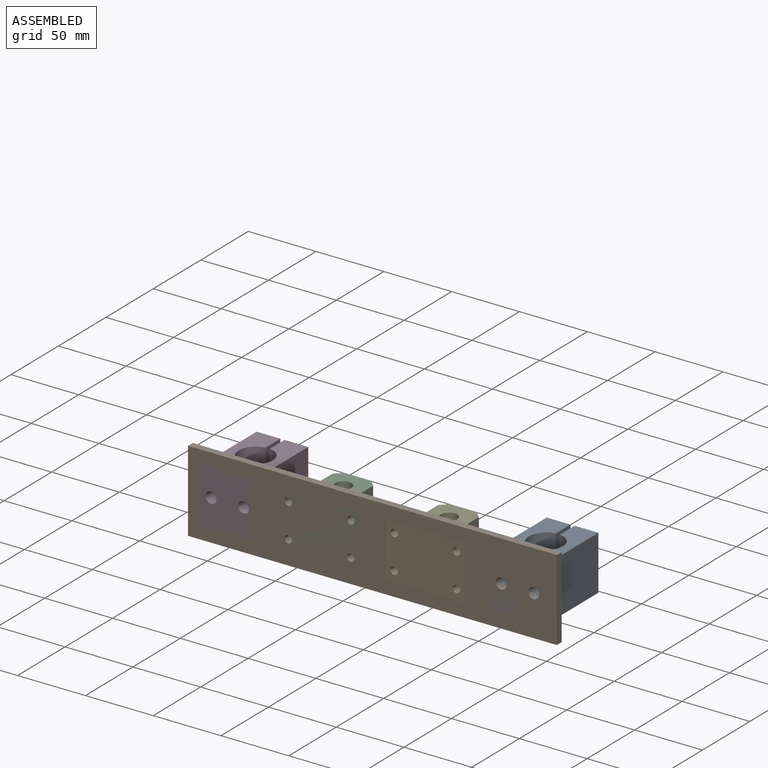
[diagram: assembled view]
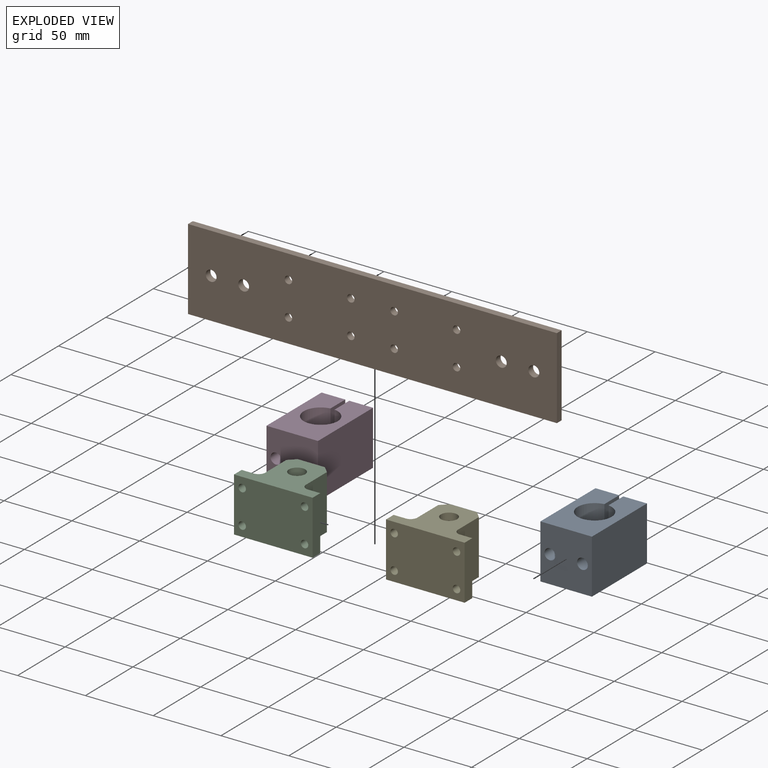
[diagram: exploded view]
GUIDED TOUR — MATED ASSEMBLY (Onshape document 39f4f6e592cfe54fdb34791c, AutoMate assembly 39f4f6e592cfe54fdb34791c_dfca0fee2ea0741d9b24875f_88b0c6e9309286d7284665ed_default)

This assembly has 5 components, labeled P0..P4 below (a component is one placed occurrence of a part; the same part can appear more than once), held together by 3 mates. A mate is a constraint between two components; its type names the relative motion it leaves free:
  CYLINDRICAL — leaves both rotation about and translation along the listed axis free.
Axis/direction vectors are unit vectors and 'through' points are millimeter coordinates, both in the assembly's world frame.

MATES
  1. CYLINDRICAL "Cylindrical 1": P4 <-> P1, axis (0.000, -1.000, 0.000) through (-22.84, -34.95, 57.49) mm
  2. CYLINDRICAL "Cylindrical 2": P0 <-> P1, axis (0.000, -1.000, 0.000) through (80.16, -34.95, 44.99) mm
  3. CYLINDRICAL "Cylindrical 3": P3 <-> P1, axis (0.000, -1.000, 0.000) through (-133.84, -34.95, 44.99) mm

ASSEMBLY ORDER
  1. P4 — the base component [order verified]
  2. P2 [order verified]
  3. P3 [order verified]
  4. P0 [order verified]
  5. P1 [order verified]
Order-tag legend:
  [order verified] — this step's position reverses a verified removal order: the component was checked to insert without passing through the ones already placed.

Of the 5 components, 3 carry the full construction recipe — the FeatureScript program that regenerates the part's solid from scratch; the rest are supplied as boundary geometry only.
Each toured component is shown spotlighted twice — in the assembled view, then in the exploded view, where a leader line traces a displaced component back to its assembled socket (saturated green if recipe-attached, orange if geometry-only; every other component desaturated gray) — followed by its recipe or geometry summary and the mates that hold it.
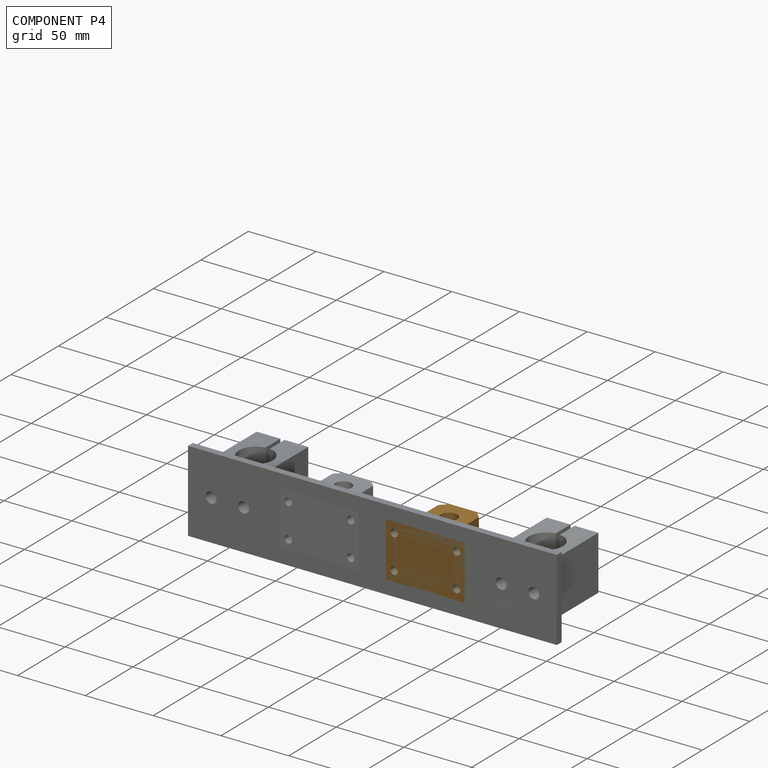
[diagram: component P4 — assembled]
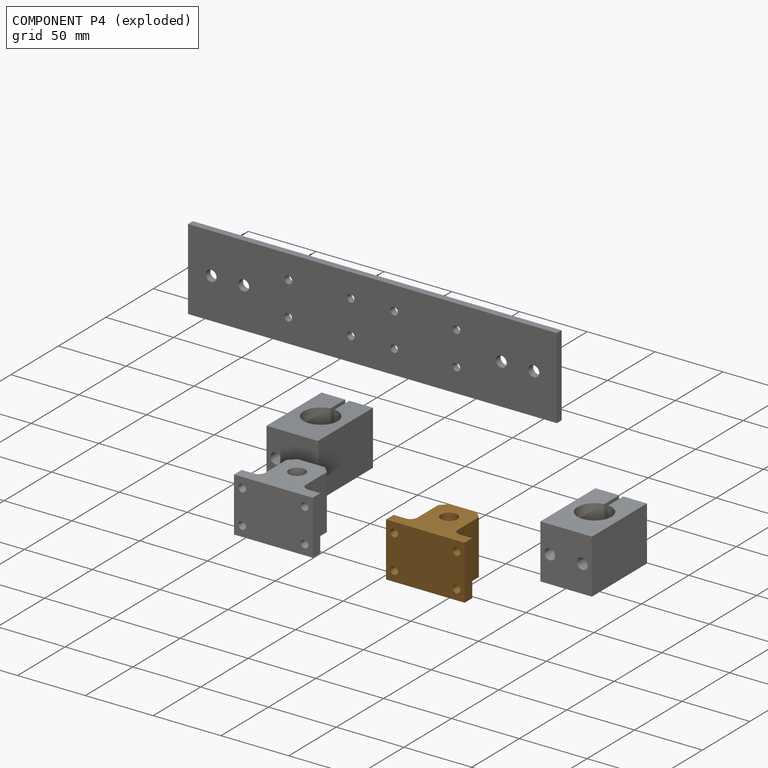
[diagram: component P4 — exploded]
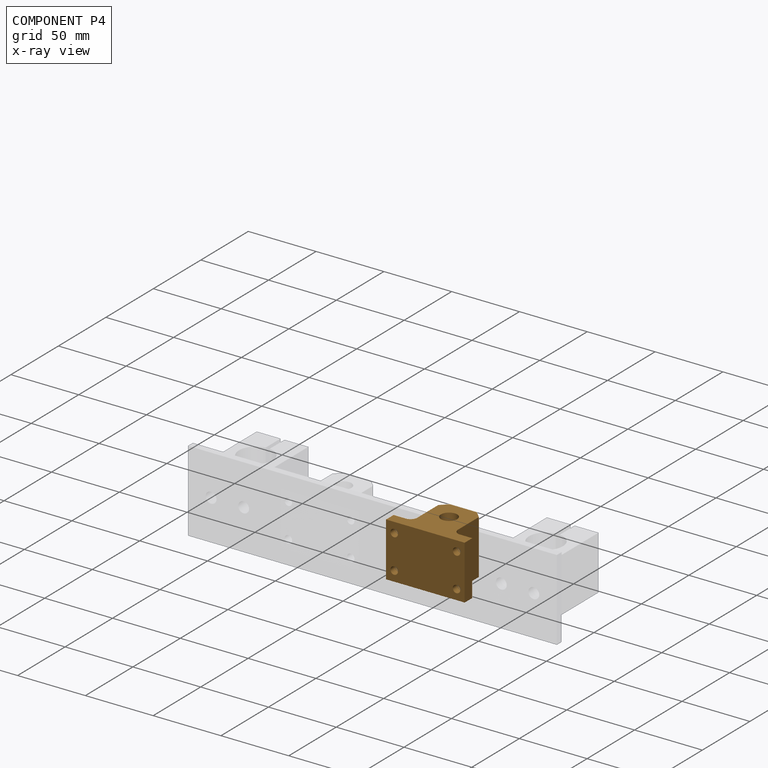
[diagram: component P4 — x-ray view]
COMPONENT P4 — geometry summary (no construction recipe available for this part):
  bounding box: 58.0 x 40.0 x 40.0 mm
  B-rep topology: 1 solid, 19 faces, 110 edges
  volume: 51105 mm^3 (55% of its bounding box)
  symmetry: 2-fold rotationally symmetric about the y axis; mirror-symmetric across its x mid-plane, z mid-plane
Held by: CYLINDRICAL mate "Cylindrical 1" to P1.
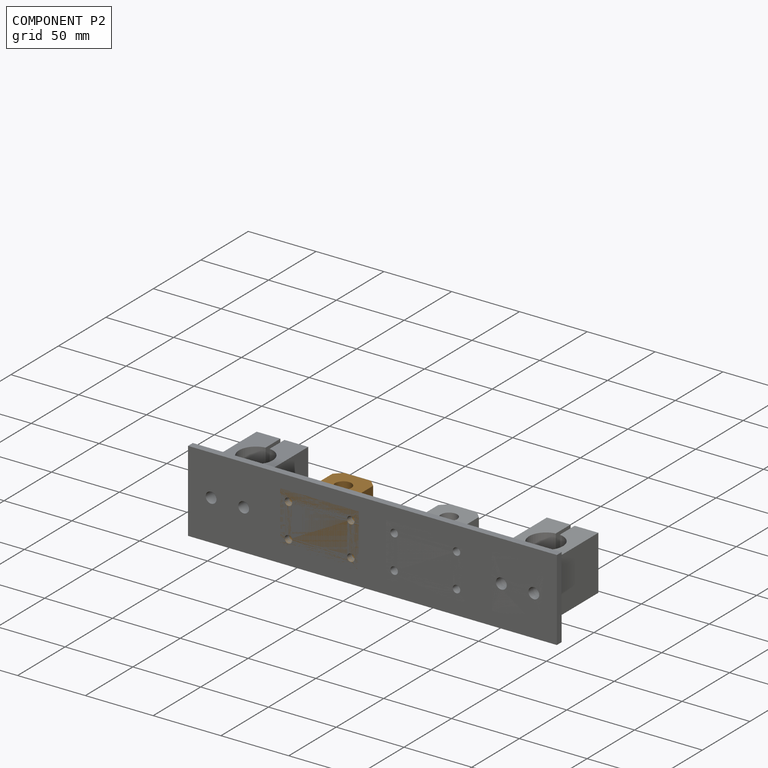
[diagram: component P2 — assembled]
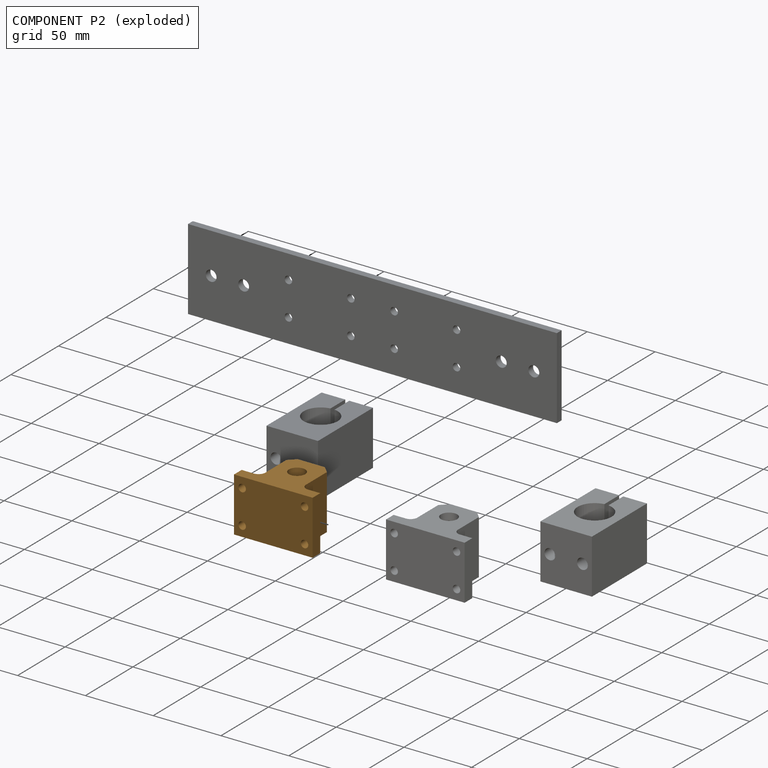
[diagram: component P2 — exploded]
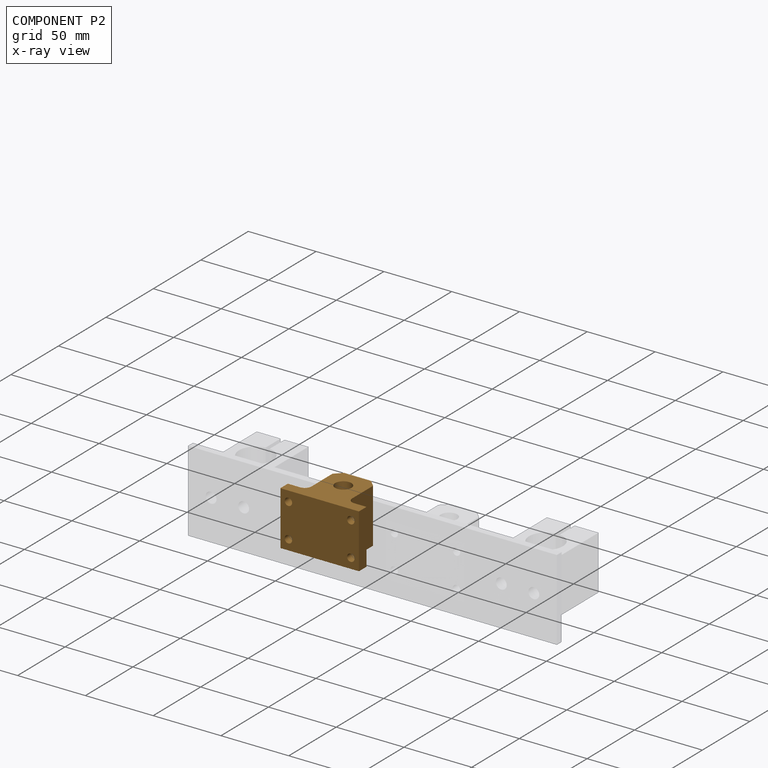
[diagram: component P2 — x-ray view]
COMPONENT P2 — geometry summary (no construction recipe available for this part):
  bounding box: 58.0 x 40.0 x 40.0 mm
  B-rep topology: 1 solid, 19 faces, 110 edges
  volume: 51105 mm^3 (55% of its bounding box)
  symmetry: 2-fold rotationally symmetric about the y axis; mirror-symmetric across its x mid-plane, z mid-plane
Held by: no mates (free).
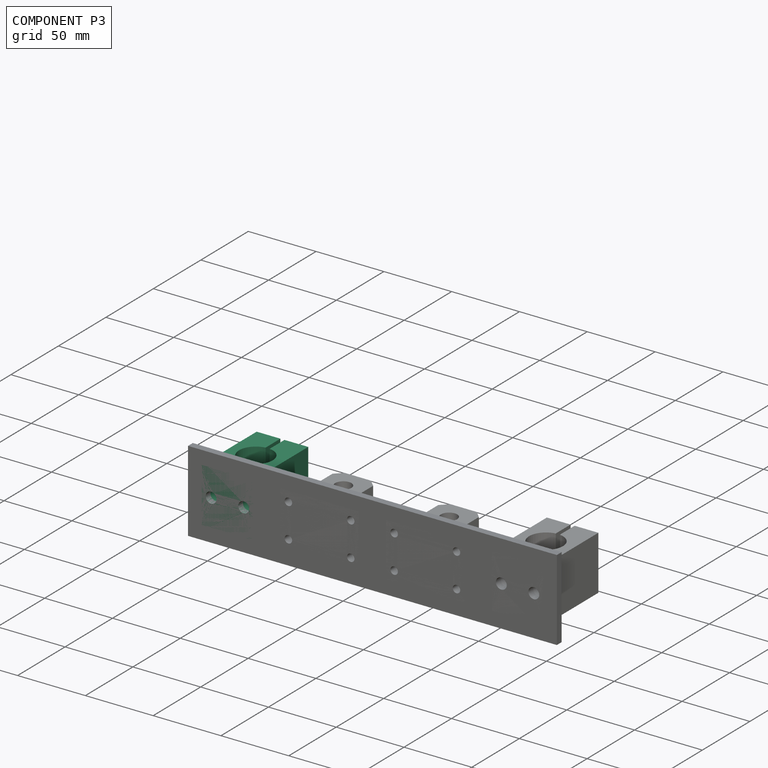
[diagram: component P3 — assembled]
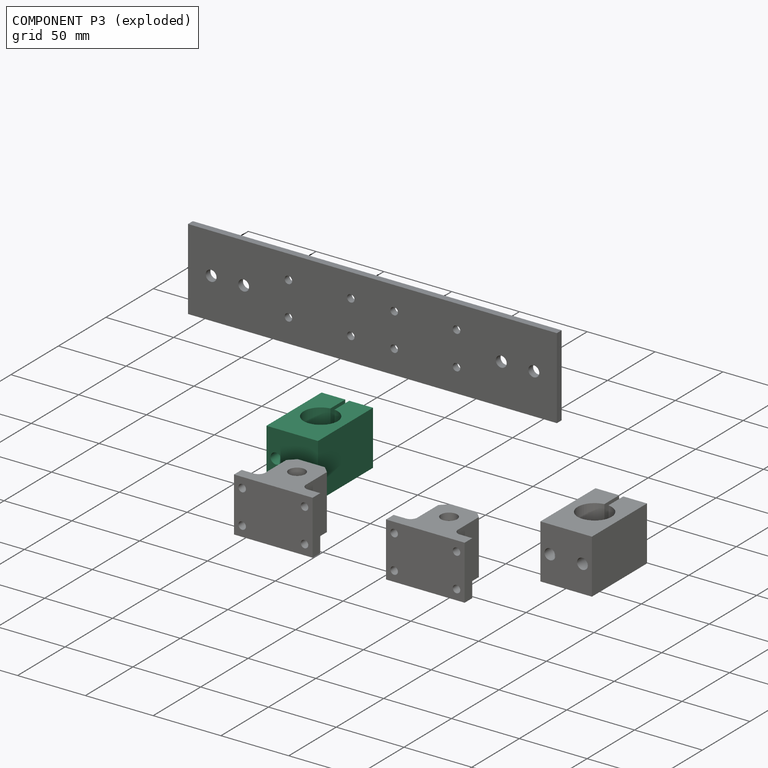
[diagram: component P3 — exploded]
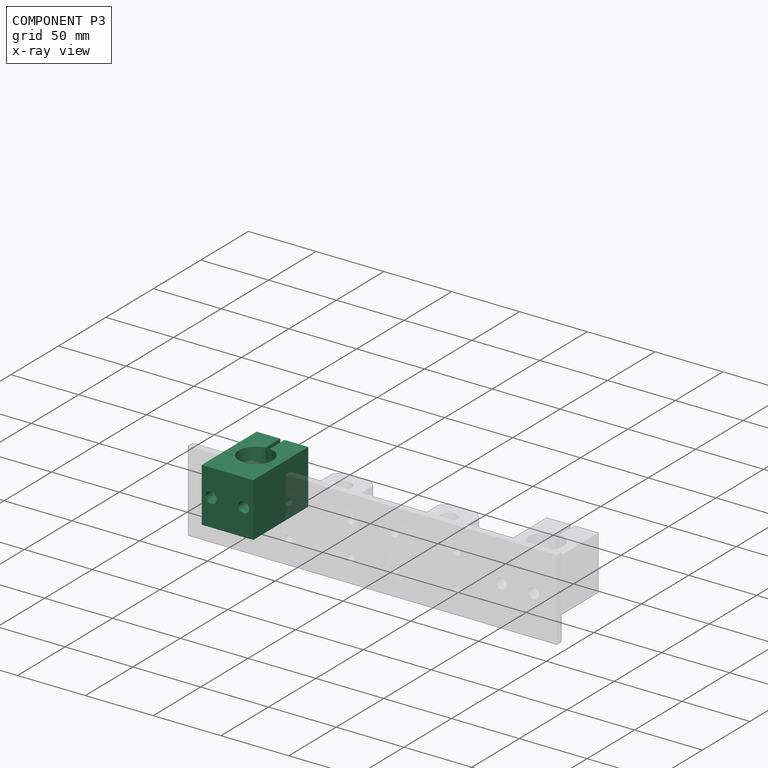
[diagram: component P3 — x-ray view]
COMPONENT P3 — same part as P0 (CADFS 00971362); its construction recipe is shown at P0.
Held by: CYLINDRICAL mate "Cylindrical 3" to P1.
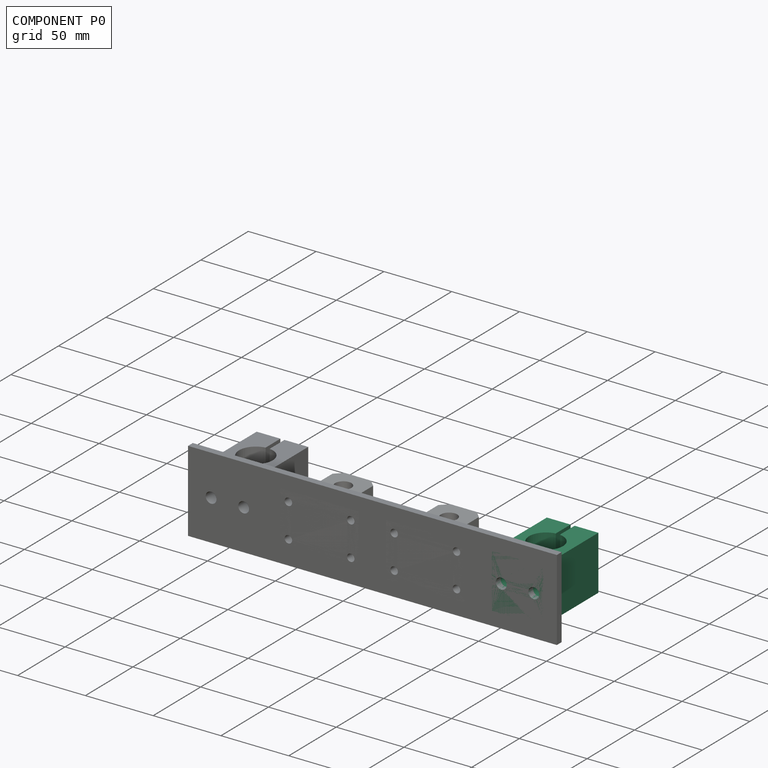
[diagram: component P0 — assembled]
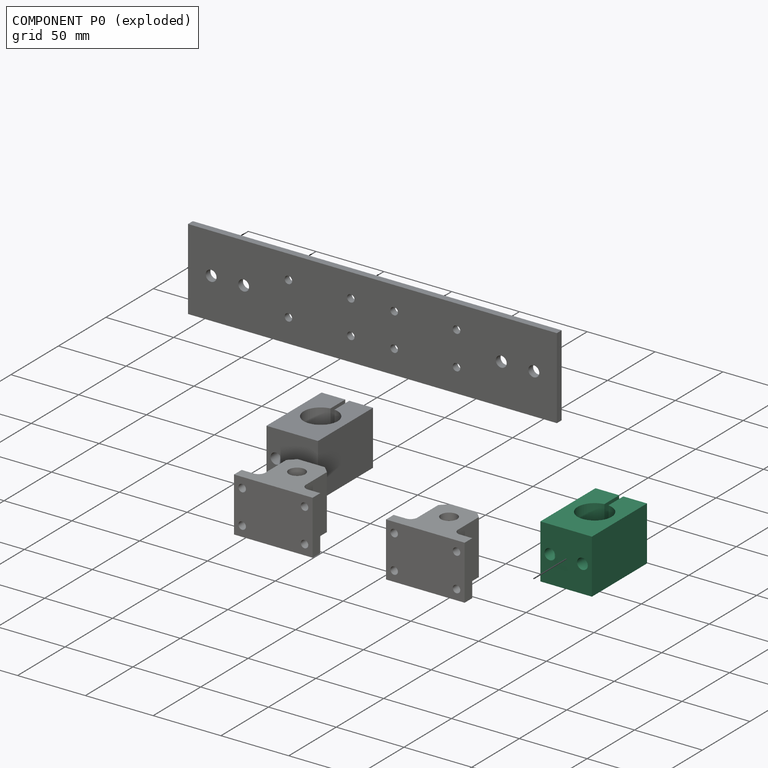
[diagram: component P0 — exploded]
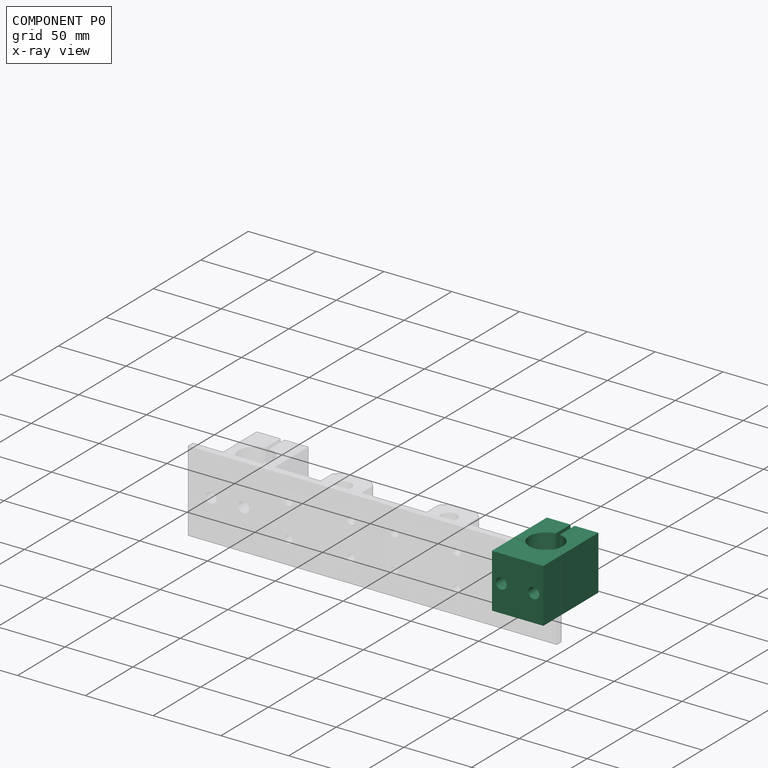
[diagram: component P0 — x-ray view]
COMPONENT P0 — recipe-attached (CADFS 00971362, mesh-verified: the recipe's output STEP matches this component's geometry to below the mesh-comparison resolution (tessellation chordal tolerance ~0.12 mm)).
Held by: CYLINDRICAL mate "Cylindrical 2" to P1.
Construction recipe (FeatureScript — the CAD program that rebuilds this solid; sketch coordinates are in the units given by the * unit suffixes, e.g. mm):

FeatureScript 1511;
import(path : "onshape/std/geometry.fs", version : "1511.0");
import(path : "onshape/std/common.fs", version : "1511.0");
const mm = millimeter;
const VERTEX = EntityType.VERTEX;
const EDGE = EntityType.EDGE;
const FACE = EntityType.FACE;
const BODY = EntityType.BODY;
function v(x, y){return vector(x, y);}
function OD(order){return orderDisambiguation(order);}
function OSD(set){return originalSetDisambiguation(set);}
function TD(topology){return topologyDisambiguation(topology);}
function TDD(query){return trueDependencyDisambiguation(query);}
function sQuery(a, b, c) {return sketchEntityQuery(a, b, c);}

annotation { "Feature Type Name" : "Feature", "Feature Type Description" : "" }
export const myFeature = defineFeature(function(context is Context, id is Id, definition is map)
    precondition{}
    {
        {
            var Q0;
            Q0=qCreatedBy(makeId("Front.planeOp"),FACE);
            var sketch = newSketch(context, id + "F0", { "sketchPlane" : qUnion([Q0])});
            skLineSegment(sketch, "E0.bottom", {"start": v(19, 29) * mm, "end": v(-19, 29) * mm});
            skLineSegment(sketch, "E0.top", {"start": v(19, -29) * mm, "end": v(-19, -29) * mm});
            skLineSegment(sketch, "E0.left", {"start": v(19, 29) * mm, "end": v(19, -29) * mm});
            skLineSegment(sketch, "E0.right", {"start": v(-19, 29) * mm, "end": v(-19, -29) * mm});
            skPoint(sketch, "E0.middle", {"position": v(0, 0) * mm});
            skLineSegment(sketch, "E1", {"start": v(1.5, 29) * mm, "end": v(1.5, 13.4) * mm, "construction": true});
            skPoint(sketch, "E2.orphan", {"position": v(-1.5, 29) * mm});
            skLineSegment(sketch, "E3", {"start": v(-1.5, 29) * mm, "end": v(-1.5, 13.4) * mm, "construction": true});
            skArc(sketch, "E4", {"start": v(-1.5, 13.4) * mm, "mid": v(0, -11.5) * mm, "end": v(1.5, 13.4) * mm});
            skLineSegment(sketch, "E5", {"start": v(-1.5, 13.4) * mm, "end": v(-1.5, 29) * mm});
            skLineSegment(sketch, "E6", {"start": v(1.5, 13.4) * mm, "end": v(1.5, 29) * mm});
            skPoint(sketch, "E7.start.orphan", {"position": v(-19, 1) * mm});
            skPoint(sketch, "E8.trimOffspring.end.orphan", {"position": v(19, 1) * mm});
            skPoint(sketch, "E9.end.orphan", {"position": v(0, 29) * mm});
            skSolve(sketch);
        }
        {
            var Q0;
            Q0=makeQuery(id+"F0.imprint","IMPRINT",FACE,{"disambiguationData":[TD([[makeQuery(id+"F0.imprint","IMPRINT",EDGE,{"derivedFrom":sQuery(id+"F0.wireOp",EDGE,"E0.top")}),-1.0]])]});
            extrude(context, id + "F1", {"entities" : qUnion([Q0]), "depth" : 40 * mm, "offsetDistance" : 25 * mm});
        }
        {
            var Q0;
            Q0=makeQuery(id+"F1.opExtrude","SWEPT_FACE",FACE,{"disambiguationData":[OSD([sQuery(id+"F0.wireOp",EDGE,"E0.top")])]});
            var sketch = newSketch(context, id + "F2", { "sketchPlane" : qUnion([Q0])});
            skCircle(sketch, "E10", {"center": v(-12, 20) * mm, "radius": 4 * mm});
            skCircle(sketch, "E11", {"center": v(12, 20) * mm, "radius": 4 * mm});
            skPoint(sketch, "E12.orphan", {"position": v(-19, 20) * mm});
            skPoint(sketch, "E13.orphan", {"position": v(-12, 40) * mm});
            skPoint(sketch, "E14.orphan", {"position": v(-12, 0) * mm});
            skPoint(sketch, "E15.orphan", {"position": v(12, 40) * mm});
            skPoint(sketch, "E16.orphan", {"position": v(12, 0) * mm});
            skPoint(sketch, "E17.end.orphan", {"position": v(19, 20) * mm});
            skSolve(sketch);
        }
        {
            var Q0;
            Q0=makeQuery(id+"F2.imprint","IMPRINT",FACE,{"disambiguationData":[TD([[makeQuery(id+"F2.imprint","IMPRINT",EDGE,{"derivedFrom":sQuery(id+"F2.wireOp",EDGE,"E10")}),1.0]])]});
            var Q1;
            Q1=makeQuery(id+"F2.imprint","IMPRINT",FACE,{"disambiguationData":[TD([[makeQuery(id+"F2.imprint","IMPRINT",EDGE,{"derivedFrom":sQuery(id+"F2.wireOp",EDGE,"E11")}),1.0]])]});
            extrude(context, id + "F3", {"entities" : qUnion([Q0, Q1]), "operationType" : NewBodyOperationType.REMOVE, "oppositeDirection" : true, "depth" : 16 * mm, "offsetDistance" : 25 * mm});
        }
    });
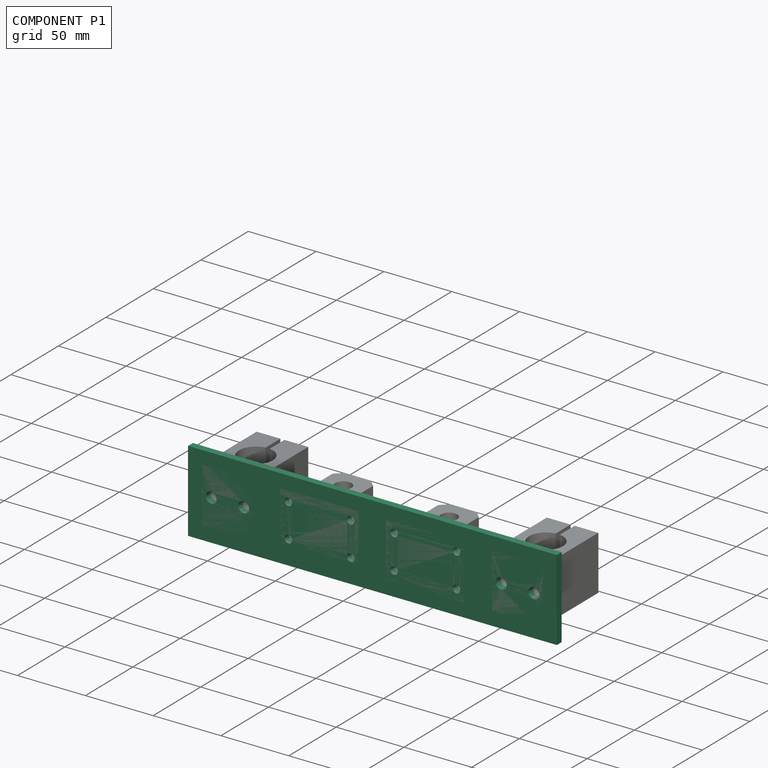
[diagram: component P1 — assembled]
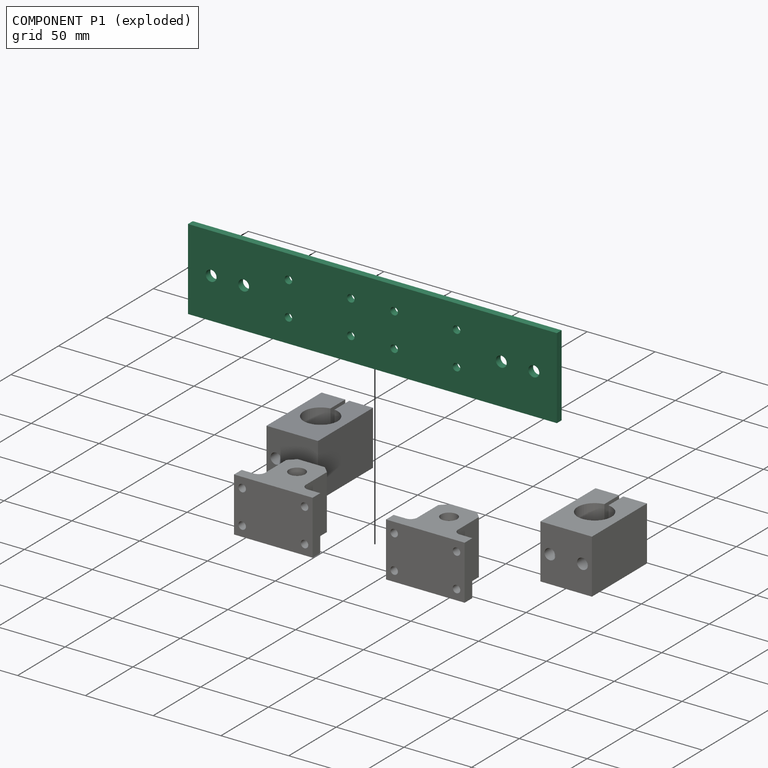
[diagram: component P1 — exploded]
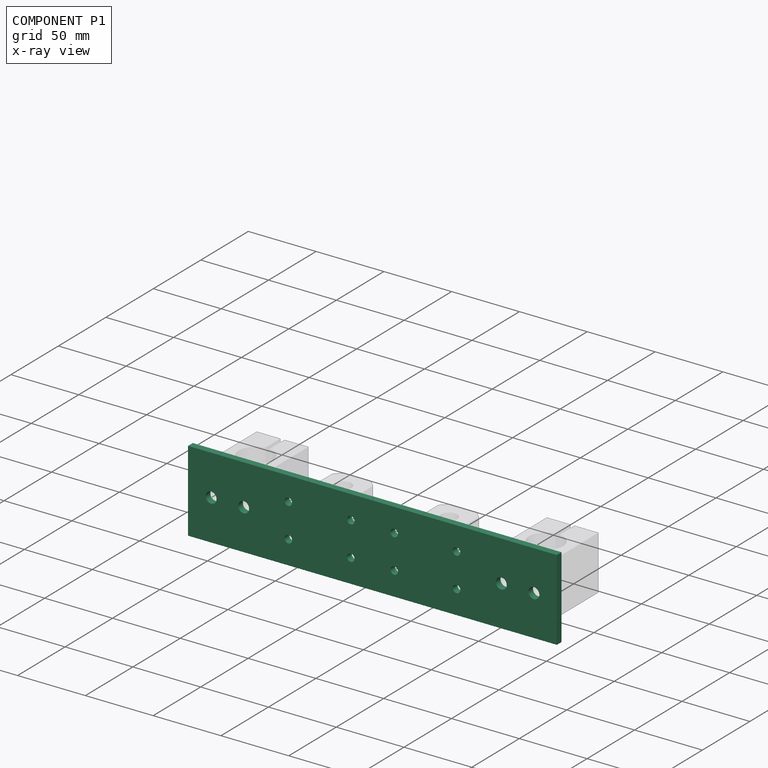
[diagram: component P1 — x-ray view]
COMPONENT P1 — recipe-attached (CADFS 00971487, mesh-verified: the recipe's output STEP matches this component's geometry to below the mesh-comparison resolution (tessellation chordal tolerance ~0.418 mm)).
Held by: CYLINDRICAL mate "Cylindrical 1" to P4; CYLINDRICAL mate "Cylindrical 2" to P0; CYLINDRICAL mate "Cylindrical 3" to P3.
Construction recipe (FeatureScript — the CAD program that rebuilds this solid; sketch coordinates are in the units given by the * unit suffixes, e.g. mm):

FeatureScript 1511;
import(path : "onshape/std/geometry.fs", version : "1511.0");
import(path : "onshape/std/common.fs", version : "1511.0");
const mm = millimeter;
const VERTEX = EntityType.VERTEX;
const EDGE = EntityType.EDGE;
const FACE = EntityType.FACE;
const BODY = EntityType.BODY;
function v(x, y){return vector(x, y);}
function OD(order){return orderDisambiguation(order);}
function OSD(set){return originalSetDisambiguation(set);}
function TD(topology){return topologyDisambiguation(topology);}
function TDD(query){return trueDependencyDisambiguation(query);}
function sQuery(a, b, c) {return sketchEntityQuery(a, b, c);}

annotation { "Feature Type Name" : "Feature", "Feature Type Description" : "" }
export const myFeature = defineFeature(function(context is Context, id is Id, definition is map)
    precondition{}
    {
        {
            var Q0;
            Q0=qCreatedBy(makeId("Front.planeOp"),FACE);
            var sketch = newSketch(context, id + "F0", { "sketchPlane" : qUnion([Q0])});
            skLineSegment(sketch, "E0.bottom", {"start": v(136, 30) * mm, "end": v(-136, 30) * mm});
            skLineSegment(sketch, "E0.top", {"start": v(136, -30) * mm, "end": v(-136, -30) * mm});
            skLineSegment(sketch, "E0.left", {"start": v(136, 30) * mm, "end": v(136, -30) * mm});
            skLineSegment(sketch, "E0.right", {"start": v(-136, 30) * mm, "end": v(-136, -30) * mm});
            skPoint(sketch, "E0.middle", {"position": v(0, 0) * mm});
            skPoint(sketch, "E1.orphan", {"position": v(-136, 15) * mm});
            skPoint(sketch, "E2.orphan", {"position": v(-136, -15) * mm});
            skPoint(sketch, "E3.orphan", {"position": v(-126, -30) * mm});
            skPoint(sketch, "E4.orphan", {"position": v(-88, -30) * mm});
            skPoint(sketch, "E5.orphan", {"position": v(88, -30) * mm});
            skPoint(sketch, "E6.orphan", {"position": v(126, -30) * mm});
            skPoint(sketch, "E7.orphan", {"position": v(-10, -30) * mm});
            skPoint(sketch, "E8.orphan", {"position": v(-68, -30) * mm});
            skPoint(sketch, "E9.orphan", {"position": v(68, 30) * mm});
            skPoint(sketch, "E10.orphan", {"position": v(68, -30) * mm});
            skPoint(sketch, "E11.orphan", {"position": v(10, -30) * mm});
            skCircle(sketch, "E12", {"center": v(-119, 0) * mm, "radius": 4 * mm});
            skCircle(sketch, "E13", {"center": v(-95, 0) * mm, "radius": 4 * mm});
            skPoint(sketch, "E14.orphan", {"position": v(-119, 15) * mm});
            skPoint(sketch, "E15.orphan", {"position": v(-95, 15) * mm});
            skPoint(sketch, "E16.orphan", {"position": v(-95, -15) * mm});
            skPoint(sketch, "E17.orphan", {"position": v(-119, -15) * mm});
            skPoint(sketch, "E18.orphan", {"position": v(-88, 0) * mm});
            skPoint(sketch, "E19.orphan", {"position": v(-126, 0) * mm});
            skPoint(sketch, "E20.center.orphan", {"position": v(95, 0) * mm});
            skCircle(sketch, "E21", {"center": v(95, 0) * mm, "radius": 4 * mm});
            skCircle(sketch, "E22", {"center": v(119, 0) * mm, "radius": 4 * mm});
            skPoint(sketch, "E23.orphan", {"position": v(95, 15) * mm});
            skPoint(sketch, "E24.orphan", {"position": v(119, 15) * mm});
            skPoint(sketch, "E25.orphan", {"position": v(126, 0) * mm});
            skPoint(sketch, "E26.orphan", {"position": v(119, -15) * mm});
            skPoint(sketch, "E27.orphan", {"position": v(95, -15) * mm});
            skPoint(sketch, "E28.orphan", {"position": v(88, 0) * mm});
            skCircle(sketch, "E29", {"center": v(-62, 12.5) * mm, "radius": 2.75 * mm});
            skCircle(sketch, "E30", {"center": v(-16, 12.5) * mm, "radius": 2.75 * mm});
            skCircle(sketch, "E31", {"center": v(-62, -12.5) * mm, "radius": 2.75 * mm});
            skCircle(sketch, "E32", {"center": v(-16, -12.5) * mm, "radius": 2.75 * mm});
            skCircle(sketch, "E33", {"center": v(16, 12.5) * mm, "radius": 2.75 * mm});
            skCircle(sketch, "E34", {"center": v(62, 12.5) * mm, "radius": 2.75 * mm});
            skCircle(sketch, "E35", {"center": v(16, -12.5) * mm, "radius": 2.75 * mm});
            skCircle(sketch, "E36", {"center": v(62, -12.5) * mm, "radius": 2.75 * mm});
            skPoint(sketch, "E37.orphan", {"position": v(-62, 20) * mm});
            skPoint(sketch, "E38.orphan", {"position": v(-68, 12.5) * mm});
            skPoint(sketch, "E39.orphan", {"position": v(-16, 20) * mm});
            skPoint(sketch, "E40.orphan", {"position": v(-68, -12.5) * mm});
            skPoint(sketch, "E41.orphan", {"position": v(10, 12.5) * mm});
            skPoint(sketch, "E42.orphan", {"position": v(10, -12.5) * mm});
            skPoint(sketch, "E43.orphan", {"position": v(16, 20) * mm});
            skPoint(sketch, "E44.orphan", {"position": v(62, 20) * mm});
            skPoint(sketch, "E45.trimOffspring.end.orphan", {"position": v(-88, 15) * mm});
            skPoint(sketch, "E46.trimOffspring.end.orphan", {"position": v(-88, -15) * mm});
            skPoint(sketch, "E47.orphan", {"position": v(-126, -15) * mm});
            skPoint(sketch, "E48.start.orphan", {"position": v(-126, 15) * mm});
            skPoint(sketch, "E49.trimOffspring.end.orphan", {"position": v(-10, 20) * mm});
            skPoint(sketch, "E50.trimOffspring.end.orphan", {"position": v(-68, -20) * mm});
            skPoint(sketch, "E51.start.orphan", {"position": v(-68, 20) * mm});
            skPoint(sketch, "E52.end.orphan", {"position": v(68, -20) * mm});
            skPoint(sketch, "E53.trimOffspring.end.orphan", {"position": v(10, -20) * mm});
            skPoint(sketch, "E54.start.orphan", {"position": v(10, 20) * mm});
            skPoint(sketch, "E55.trimOffspring.end.orphan", {"position": v(68, 20) * mm});
            skPoint(sketch, "E56.start.orphan", {"position": v(88, 15) * mm});
            skPoint(sketch, "E57.trimOffspring.end.orphan", {"position": v(126, 15) * mm});
            skPoint(sketch, "E58.start.orphan", {"position": v(126, -15) * mm});
            skPoint(sketch, "E59.trimOffspring.end.orphan", {"position": v(88, -15) * mm});
            skSolve(sketch);
        }
        {
            var Q0;
            Q0=makeQuery(id+"F0.imprint","IMPRINT",FACE,{"disambiguationData":[TD([[makeQuery(id+"F0.imprint","IMPRINT",EDGE,{"derivedFrom":sQuery(id+"F0.wireOp",EDGE,"E0.bottom")}),1.0]])]});
            extrude(context, id + "F1", {"entities" : qUnion([Q0]), "depth" : 5 * mm, "offsetDistance" : 25 * mm});
        }
    });
PROVENANCE & LICENSES
Assembly (occurrences, transforms, mates, per-part STEP geometry): AutoMate dataset, Zenodo record 7776208, CC0.
Construction recipes: CADFS (HuggingFace VladPyatov/CADFS, CC-BY-4.0, layered over the ABC dataset), FeatureScript reconstruction programs keyed by ABC model id.
Join: ABC meta listings map ABC model id -> Onshape documentId; within a shared document, parts are matched by geometric signature (bounding-box dims + volume at 0.1% relative tolerance, exact B-rep face/solid counts).
Verification: 3 of this assembly's 5 components carry a recipe attachment, and every attachment is mesh-verified: the CADFS STEP and the AutoMate member STEP were compared as meshes in their shared local frame (symmetric sampled-point-to-mesh distance); worst across the 3 attachments: below the mesh-comparison resolution (tessellation chordal tolerance ~0.418 mm) on a 279 mm part.
Renders: orthographic iso camera (az 35 / el 25); the floor grid conveys scale (grid pitch printed in each image; no ruler). In the exploded view each component is displaced by its stored offset vector: the offsets alone carry the explosion direction (mate normal/axis signs are not orientation cues and do not encode it), and separation distances are assigned per mate-chain, not proportionally to assembly-order depth.
